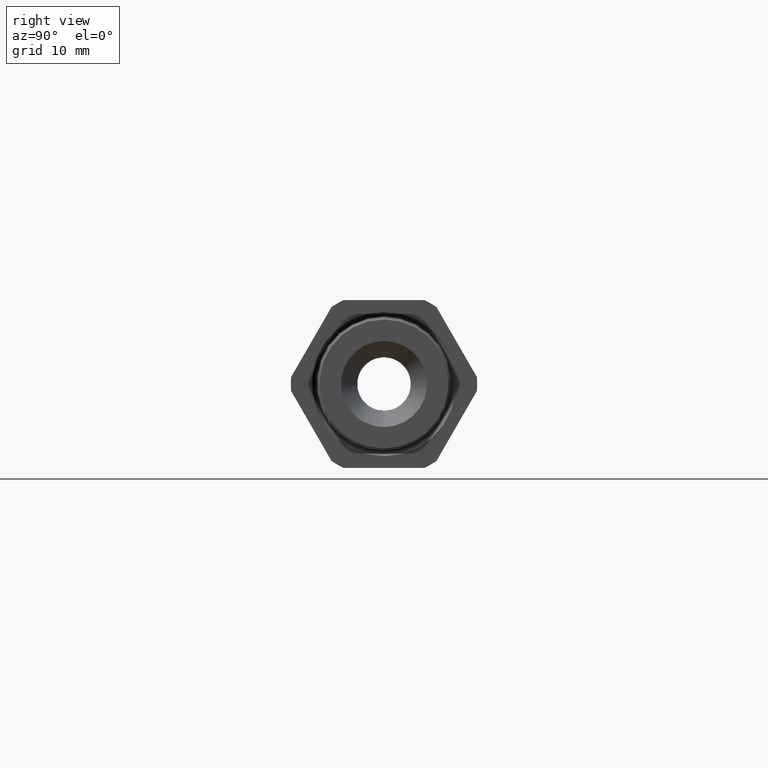
[diagram: clean part render]
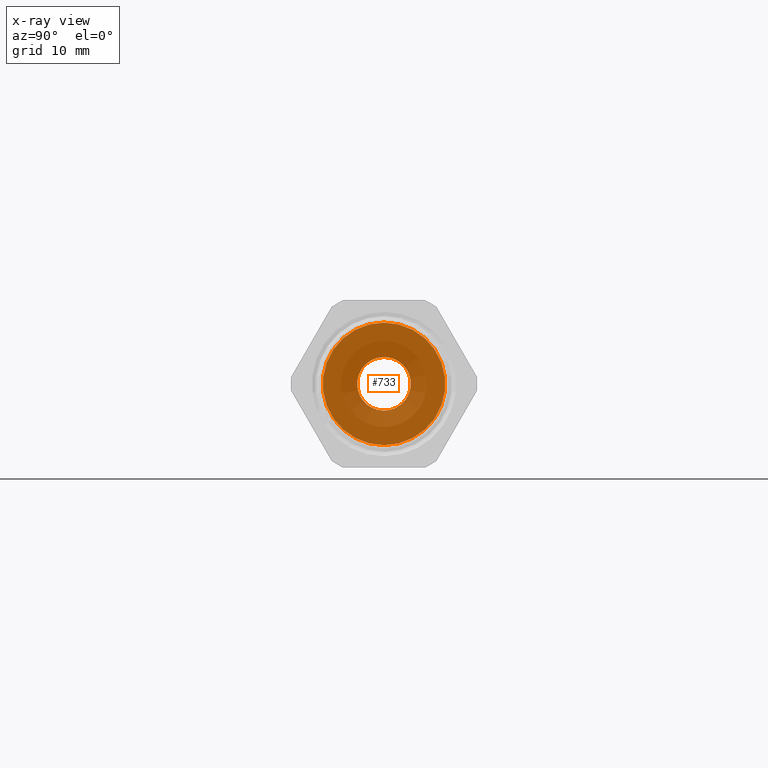
[diagram: x-ray — body ghosted, one internal face saturated and labeled with its STEP entity id]
A machine part, right view, then the same camera in x-ray: the body is ghosted and one INTERNAL B-rep face — a face not visible from any outside direction — is saturated and labeled: STEP entity #733.
In plain terms, the highlighted planar face has unit normal (1, 0, 0).
Its self-contained STEP definition (entity closure, byte-faithful):
#632 = EDGE_LOOP ( 'NONE', ( #734, #735 ) ) ;
#679 = VERTEX_POINT ( 'NONE', #2553 ) ;
#681 = EDGE_CURVE ( 'NONE', #679, #682, #2552, .T. ) ;
#682 = VERTEX_POINT ( 'NONE', #2547 ) ;
#704 = VERTEX_POINT ( 'NONE', #2629 ) ;
#706 = EDGE_CURVE ( 'NONE', #707, #704, #2628, .T. ) ;
#707 = VERTEX_POINT ( 'NONE', #2623 ) ;
#733 = ADVANCED_FACE ( 'NONE', ( #2698, #2697 ), #2696, .T. ) ;
#734 = ORIENTED_EDGE ( 'NONE', *, *, #706, .T. ) ;
#735 = ORIENTED_EDGE ( 'NONE', *, *, #736, .T. ) ;
#736 = EDGE_CURVE ( 'NONE', #704, #707, #2691, .T. ) ;
#737 = EDGE_LOOP ( 'NONE', ( #738, #740 ) ) ;
#738 = ORIENTED_EDGE ( 'NONE', *, *, #739, .F. ) ;
#739 = EDGE_CURVE ( 'NONE', #682, #679, #2686, .T. ) ;
#740 = ORIENTED_EDGE ( 'NONE', *, *, #681, .F. ) ;
#2547 = CARTESIAN_POINT ( 'NONE',  ( -1.073700787401574900, 0.0000000000000000000, -0.1200000000000000200 ) ) ;
#2548 = DIRECTION ( 'NONE',  ( 0.0000000000000000000, 0.0000000000000000000, -1.000000000000000000 ) ) ;
#2549 = DIRECTION ( 'NONE',  ( 1.000000000000000000, 0.0000000000000000000, 0.0000000000000000000 ) ) ;
#2550 = CARTESIAN_POINT ( 'NONE',  ( -1.073700787401574900, 0.0000000000000000000, 0.0000000000000000000 ) ) ;
#2551 = AXIS2_PLACEMENT_3D ( 'NONE', #2550, #2549, #2548 ) ;
#2552 = CIRCLE ( 'NONE', #2551, 0.1200000000000000200 ) ;
#2553 = CARTESIAN_POINT ( 'NONE',  ( -1.073700787401574900, 1.469576158976824000E-017, 0.1200000000000000200 ) ) ;
#2623 = CARTESIAN_POINT ( 'NONE',  ( -1.073700787401574900, 0.0000000000000000000, -0.2737499999999999900 ) ) ;
#2624 = DIRECTION ( 'NONE',  ( 0.0000000000000000000, 0.0000000000000000000, -1.000000000000000000 ) ) ;
#2625 = DIRECTION ( 'NONE',  ( 1.000000000000000000, 0.0000000000000000000, 0.0000000000000000000 ) ) ;
#2626 = CARTESIAN_POINT ( 'NONE',  ( -1.073700787401574900, 0.0000000000000000000, 0.0000000000000000000 ) ) ;
#2627 = AXIS2_PLACEMENT_3D ( 'NONE', #2626, #2625, #2624 ) ;
#2628 = CIRCLE ( 'NONE', #2627, 0.2737499999999999900 ) ;
#2629 = CARTESIAN_POINT ( 'NONE',  ( -1.073700787401574900, 3.352470612665879100E-017, 0.2737499999999999900 ) ) ;
#2682 = DIRECTION ( 'NONE',  ( 0.0000000000000000000, 0.0000000000000000000, -1.000000000000000000 ) ) ;
#2683 = DIRECTION ( 'NONE',  ( 1.000000000000000000, 0.0000000000000000000, 0.0000000000000000000 ) ) ;
#2684 = CARTESIAN_POINT ( 'NONE',  ( -1.073700787401574900, 0.0000000000000000000, 0.0000000000000000000 ) ) ;
#2685 = AXIS2_PLACEMENT_3D ( 'NONE', #2684, #2683, #2682 ) ;
#2686 = CIRCLE ( 'NONE', #2685, 0.1200000000000000200 ) ;
#2687 = DIRECTION ( 'NONE',  ( 0.0000000000000000000, 0.0000000000000000000, -1.000000000000000000 ) ) ;
#2688 = DIRECTION ( 'NONE',  ( 1.000000000000000000, 0.0000000000000000000, 0.0000000000000000000 ) ) ;
#2689 = CARTESIAN_POINT ( 'NONE',  ( -1.073700787401574900, 0.0000000000000000000, 0.0000000000000000000 ) ) ;
#2690 = AXIS2_PLACEMENT_3D ( 'NONE', #2689, #2688, #2687 ) ;
#2691 = CIRCLE ( 'NONE', #2690, 0.2737499999999999900 ) ;
#2692 = DIRECTION ( 'NONE',  ( 0.0000000000000000000, 0.0000000000000000000, -1.000000000000000000 ) ) ;
#2693 = DIRECTION ( 'NONE',  ( 1.000000000000000000, 0.0000000000000000000, 0.0000000000000000000 ) ) ;
#2694 = CARTESIAN_POINT ( 'NONE',  ( -1.073700787401574900, 0.2737499999999999900, 0.0000000000000000000 ) ) ;
#2695 = AXIS2_PLACEMENT_3D ( 'NONE', #2694, #2693, #2692 ) ;
#2696 = PLANE ( 'NONE',  #2695 ) ;
#2697 = FACE_BOUND ( 'NONE', #737, .T. ) ;
#2698 = FACE_OUTER_BOUND ( 'NONE', #632, .T. ) ;